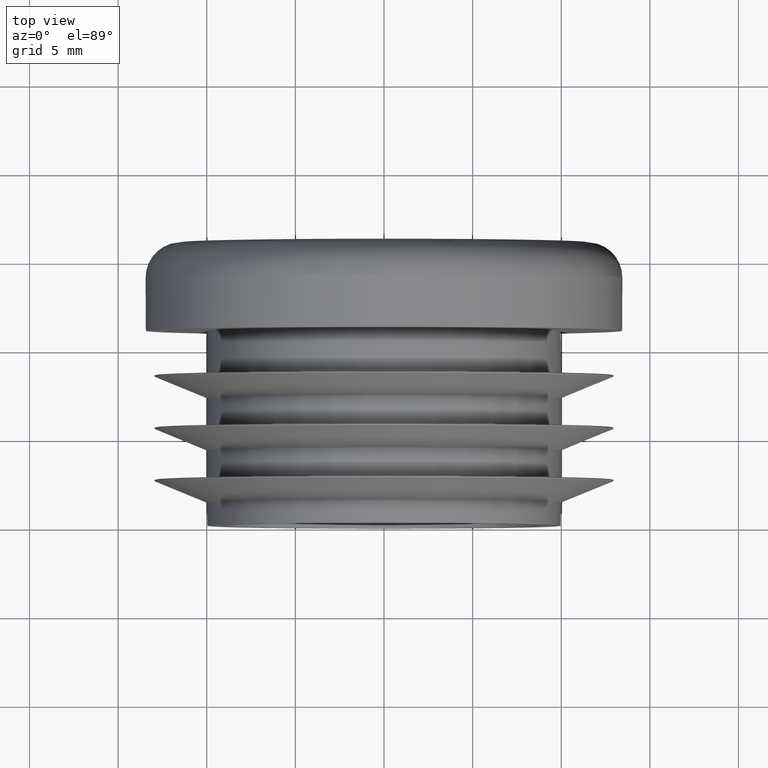
[diagram: clean part render]
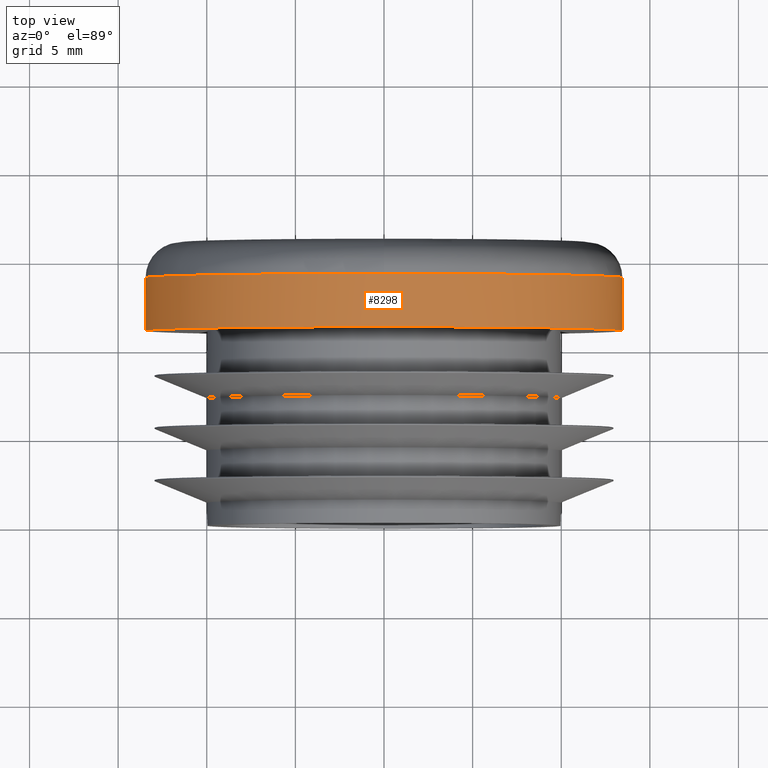
[diagram: same view with one face highlighted and labeled with its STEP entity id]
A machine part, top view. The second image highlights one B-rep face of the part: STEP entity #8298.
In plain terms, the highlighted cylindrical surface (bore or boss wall) has radius 13.45 mm, axis along (-0, -1, -0).
Its self-contained STEP definition (entity closure, byte-faithful):
#19 = FACE_OUTER_BOUND ( 'NONE', #4699, .T. ) ;
#782 = CYLINDRICAL_SURFACE ( 'NONE', #2648, 13.44999999999999929 ) ;
#1217 = VERTEX_POINT ( 'NONE', #7954 ) ;
#1316 = ORIENTED_EDGE ( 'NONE', *, *, #5253, .T. ) ;
#1679 = VERTEX_POINT ( 'NONE', #8038 ) ;
#1846 = CARTESIAN_POINT ( 'NONE',  ( 0.000000000000000000, 14.00000000000000000, 0.000000000000000000 ) ) ;
#2648 = AXIS2_PLACEMENT_3D ( 'NONE', #3507, #10306, #6078 ) ;
#3507 = CARTESIAN_POINT ( 'NONE',  ( 0.000000000000000000, 11.00000000000000000, 0.000000000000000000 ) ) ;
#4181 = AXIS2_PLACEMENT_3D ( 'NONE', #1846, #8129, #5515 ) ;
#4699 = EDGE_LOOP ( 'NONE', ( #10195 ) ) ;
#4879 = DIRECTION ( 'NONE',  ( 0.000000000000000000, 0.000000000000000000, -1.000000000000000000 ) ) ;
#5082 = AXIS2_PLACEMENT_3D ( 'NONE', #7519, #6700, #4879 ) ;
#5253 = EDGE_CURVE ( 'NONE', #1217, #1217, #6860, .T. ) ;
#5515 = DIRECTION ( 'NONE',  ( 0.000000000000000000, 0.000000000000000000, 1.000000000000000000 ) ) ;
#6078 = DIRECTION ( 'NONE',  ( 0.000000000000000000, 0.000000000000000000, -1.000000000000000000 ) ) ;
#6700 = DIRECTION ( 'NONE',  ( -0.000000000000000000, -1.000000000000000000, -0.000000000000000000 ) ) ;
#6860 = CIRCLE ( 'NONE', #4181, 13.44999999999999929 ) ;
#6863 = FACE_OUTER_BOUND ( 'NONE', #10071, .T. ) ;
#7519 = CARTESIAN_POINT ( 'NONE',  ( 0.000000000000000000, 11.00000000000000178, 0.000000000000000000 ) ) ;
#7795 = CIRCLE ( 'NONE', #5082, 13.44999999999999929 ) ;
#7954 = CARTESIAN_POINT ( 'NONE',  ( 0.000000000000000000, 14.00000000000000000, 13.44999999999999929 ) ) ;
#8038 = CARTESIAN_POINT ( 'NONE',  ( 0.000000000000000000, 11.00000000000000178, -13.44999999999999929 ) ) ;
#8129 = DIRECTION ( 'NONE',  ( -0.000000000000000000, -1.000000000000000000, -0.000000000000000000 ) ) ;
#8298 = ADVANCED_FACE ( 'NONE', ( #6863, #19 ), #782, .T. ) ;
#9404 = EDGE_CURVE ( 'NONE', #1679, #1679, #7795, .T. ) ;
#10071 = EDGE_LOOP ( 'NONE', ( #1316 ) ) ;
#10195 = ORIENTED_EDGE ( 'NONE', *, *, #9404, .F. ) ;
#10306 = DIRECTION ( 'NONE',  ( -0.000000000000000000, -1.000000000000000000, -0.000000000000000000 ) ) ;